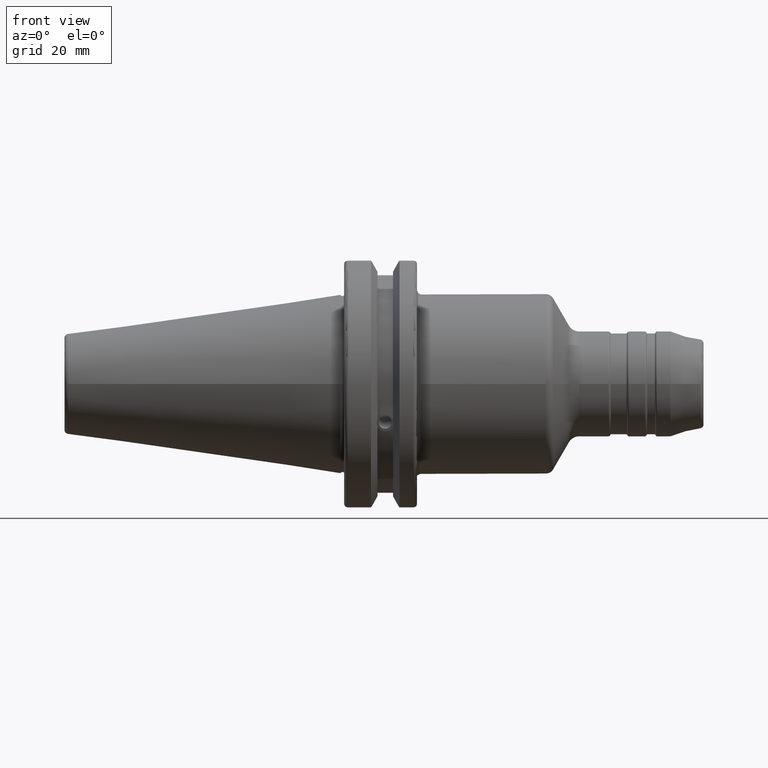
[diagram: clean part render]
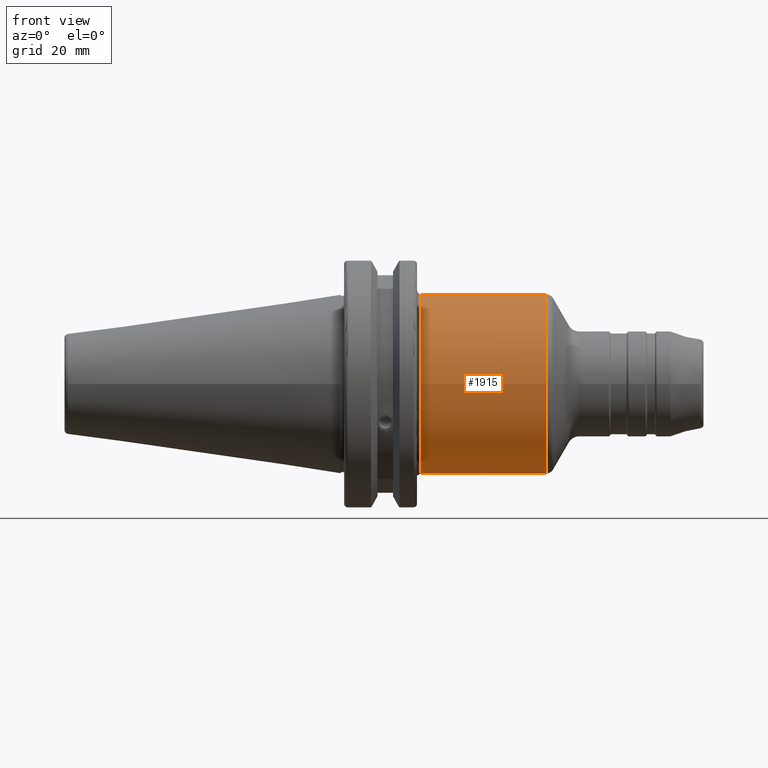
[diagram: same view with one face highlighted and labeled with its STEP entity id]
A machine part, front view. The second image highlights one B-rep face of the part: STEP entity #1915.
In plain terms, the highlighted cylindrical surface (bore or boss wall) has radius 22.25 mm, axis along (1, 0, 0).
Its self-contained STEP definition (entity closure, byte-faithful):
#141=CYLINDRICAL_SURFACE('',#2062,22.25);
#177=LINE('',#2975,#272);
#272=VECTOR('',#2351,22.25);
#393=FACE_OUTER_BOUND('',#505,.T.);
#505=EDGE_LOOP('',(#1300,#1301,#1302,#1303,#1304,#1305));
#638=CIRCLE('',#2060,22.25);
#639=CIRCLE('',#2061,22.25);
#640=CIRCLE('',#2063,22.25);
#641=CIRCLE('',#2064,22.25);
#773=VERTEX_POINT('',#2968);
#774=VERTEX_POINT('',#2970);
#775=VERTEX_POINT('',#2974);
#776=VERTEX_POINT('',#2976);
#980=EDGE_CURVE('',#773,#774,#638,.T.);
#981=EDGE_CURVE('',#774,#773,#639,.T.);
#982=EDGE_CURVE('',#774,#775,#177,.T.);
#983=EDGE_CURVE('',#776,#775,#640,.T.);
#984=EDGE_CURVE('',#775,#776,#641,.T.);
#1300=ORIENTED_EDGE('',*,*,#981,.F.);
#1301=ORIENTED_EDGE('',*,*,#982,.T.);
#1302=ORIENTED_EDGE('',*,*,#983,.F.);
#1303=ORIENTED_EDGE('',*,*,#984,.F.);
#1304=ORIENTED_EDGE('',*,*,#982,.F.);
#1305=ORIENTED_EDGE('',*,*,#980,.F.);
#1915=ADVANCED_FACE('',(#393),#141,.T.);
#2060=AXIS2_PLACEMENT_3D('',#2971,#2345,#2346);
#2061=AXIS2_PLACEMENT_3D('',#2972,#2347,#2348);
#2062=AXIS2_PLACEMENT_3D('',#2973,#2349,#2350);
#2063=AXIS2_PLACEMENT_3D('',#2977,#2352,#2353);
#2064=AXIS2_PLACEMENT_3D('',#2978,#2354,#2355);
#2345=DIRECTION('center_axis',(1.,0.,0.));
#2346=DIRECTION('ref_axis',(0.,-1.,1.83697019872103E-16));
#2347=DIRECTION('center_axis',(1.,0.,0.));
#2348=DIRECTION('ref_axis',(0.,-1.,1.83697019872103E-16));
#2349=DIRECTION('center_axis',(1.,0.,0.));
#2350=DIRECTION('ref_axis',(0.,1.,0.));
#2351=DIRECTION('',(-1.,0.,0.));
#2352=DIRECTION('center_axis',(-1.,0.,0.));
#2353=DIRECTION('ref_axis',(0.,-1.,-1.22464679914735E-16));
#2354=DIRECTION('center_axis',(-1.,0.,0.));
#2355=DIRECTION('ref_axis',(0.,-1.,-1.22464679914735E-16));
#2968=CARTESIAN_POINT('',(51.0048094716167,-2.72483912810286E-15,22.25));
#2970=CARTESIAN_POINT('',(51.0048094716167,-22.25,-2.72483912810286E-15));
#2971=CARTESIAN_POINT('Origin',(51.0048094716167,0.,0.));
#2972=CARTESIAN_POINT('Origin',(51.0048094716167,0.,0.));
#2973=CARTESIAN_POINT('Origin',(35.604755004998,0.,0.));
#2974=CARTESIAN_POINT('',(20.05,-22.25,-2.72483912810286E-15));
#2975=CARTESIAN_POINT('',(35.604755004998,-22.25,-2.72483912810286E-15));
#2976=CARTESIAN_POINT('',(20.05,-2.72483912810286E-15,-22.25));
#2977=CARTESIAN_POINT('Origin',(20.05,0.,0.));
#2978=CARTESIAN_POINT('Origin',(20.05,0.,0.));